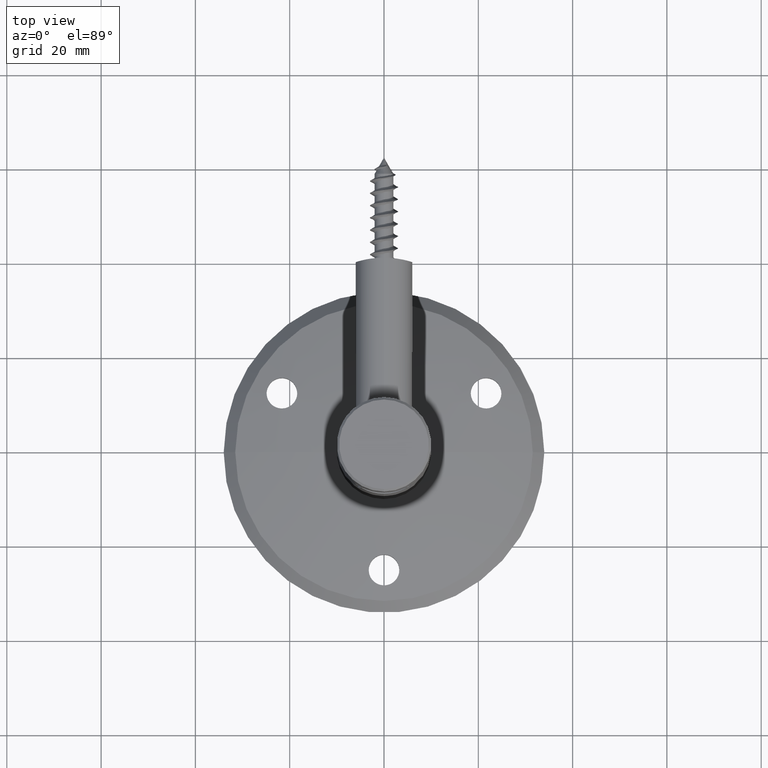
[diagram: clean part render]
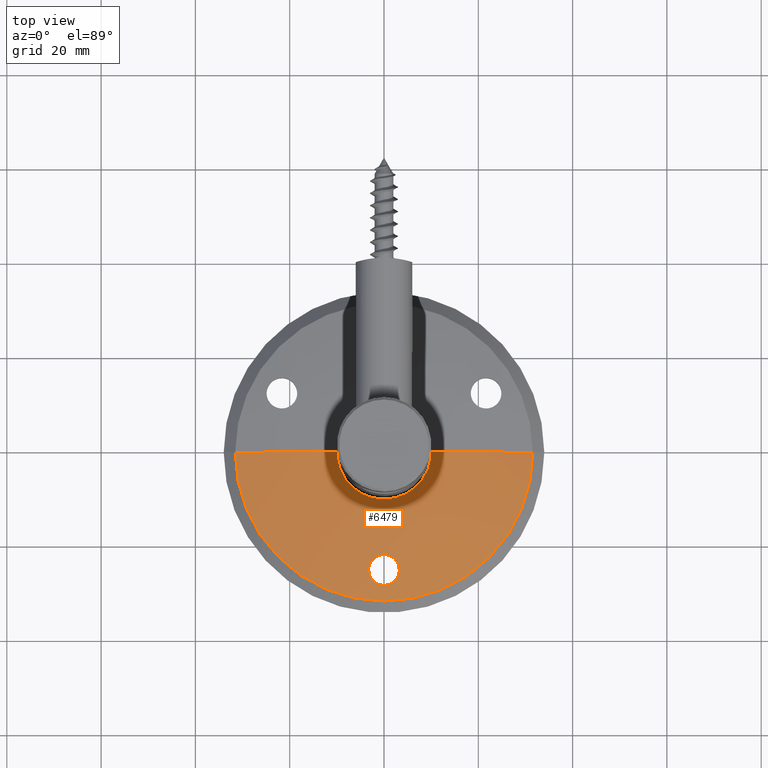
[diagram: same view with one face highlighted and labeled with its STEP entity id]
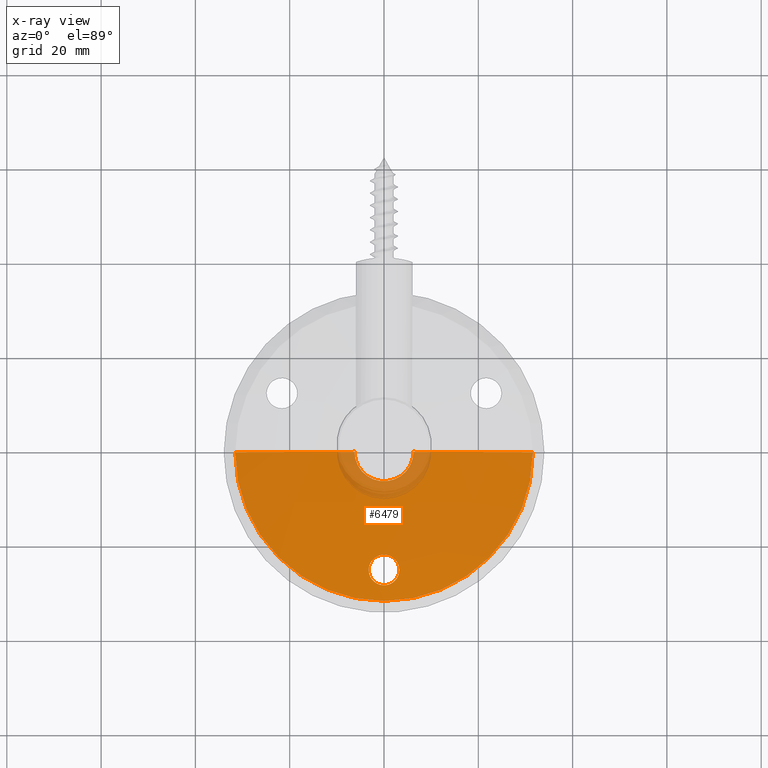
[diagram: x-ray of the same camera — body ghosted, the highlighted face saturated]
A machine part, top view. The second image highlights one B-rep face of the part: STEP entity #6479.
The next image is the same camera in x-ray: the body ghosted, the highlighted face saturated — about 6% of this face is hidden behind the body in this view.
In plain terms, the highlighted spherical surface has radius 137.202 mm.
Its self-contained STEP definition (entity closure, byte-faithful):
#492 = DIRECTION ( 'NONE',  ( -1.000000000000000000, 0.000000000000000000, 0.000000000000000000 ) ) ;
#1478 = DIRECTION ( 'NONE',  ( -1.000000000000000000, 0.000000000000000000, 0.000000000000000000 ) ) ;
#1677 = CARTESIAN_POINT ( 'NONE',  ( 2.592400926990093168, 3.028920962503615311, 23.02850155933839105 ) ) ;
#1778 = AXIS2_PLACEMENT_3D ( 'NONE', #27768, #10141, #5336 ) ;
#1878 = CARTESIAN_POINT ( 'NONE',  ( 1.641276669178852732, 3.184425423041860714, 22.18684626569852369 ) ) ;
#1956 = CARTESIAN_POINT ( 'NONE',  ( -2.159813226997773228, 2.211320021217065612, 27.43772102617782238 ) ) ;
#2065 = CARTESIAN_POINT ( 'NONE',  ( 1.991528001107110812, 2.185390098802928893, 27.57711471203964493 ) ) ;
#2352 = AXIS2_PLACEMENT_3D ( 'NONE', #12020, #14302, #12117 ) ;
#2372 = CARTESIAN_POINT ( 'NONE',  ( -2.156691685735580677, 3.115633097303470933, 22.55929944123282738 ) ) ;
#2547 = CIRCLE ( 'NONE', #24593, 137.2019220182881440 ) ;
#2738 = ORIENTED_EDGE ( 'NONE', *, *, #13621, .T. ) ;
#3693 = CARTESIAN_POINT ( 'NONE',  ( 31.55000000000005045, 1.323225072109828426, 0.000000000000000000 ) ) ;
#3841 = CARTESIAN_POINT ( 'NONE',  ( 1.454156640803115685, 3.203136682624971865, 22.08550439017769307 ) ) ;
#3936 = CARTESIAN_POINT ( 'NONE',  ( 0.2174964460757770335, 3.265038039974091255, 21.75015276172783985 ) ) ;
#3978 = CARTESIAN_POINT ( 'NONE',  ( -3.250000000000234479, 2.663955450819719850, 24.99999999999998579 ) ) ;
#4111 = CARTESIAN_POINT ( 'NONE',  ( 1.451211970268986517, 2.122328351254832324, 27.91601816232683575 ) ) ;
#4127 = CARTESIAN_POINT ( 'NONE',  ( 0.4331654981397827231, 3.261016725665352833, 21.77194385712158109 ) ) ;
#4306 = CARTESIAN_POINT ( 'NONE',  ( -0.8500023731105545988, 2.079854029597326459, 28.14419177345497403 ) ) ;
#4401 = CARTESIAN_POINT ( 'NONE',  ( -0.4296926412405789875, 2.064139729453684069, 28.22859259997591508 ) ) ;
#4524 = CARTESIAN_POINT ( 'NONE',  ( -3.250000000000234479, 2.663955450819719850, 24.99999999999998579 ) ) ;
#4620 = CARTESIAN_POINT ( 'NONE',  ( -3.250000000000053735, 2.703038059138460181, 24.78916358941254572 ) ) ;
#5336 = DIRECTION ( 'NONE',  ( -1.000000000000000000, 0.000000000000000000, -1.224646799147353207E-16 ) ) ;
#5575 = DIRECTION ( 'NONE',  ( 0.000000000000000000, 0.000000000000000000, 1.000000000000000000 ) ) ;
#5577 = EDGE_CURVE ( 'NONE', #20458, #15756, #25541, .T. ) ;
#6295 = CARTESIAN_POINT ( 'NONE',  ( -3.229650991750099287, 2.586094013946226955, 25.41994228504162834 ) ) ;
#6301 = CARTESIAN_POINT ( 'NONE',  ( -9.101148846307532162E-19, 4.857572018106197653, 0.000000000000000000 ) ) ;
#6395 = CARTESIAN_POINT ( 'NONE',  ( 1.638805857162360713, 2.141202045113756558, 27.81460821087681623 ) ) ;
#6479 = ADVANCED_FACE ( 'NONE', ( #26925, #20953 ), #14319, .T. ) ;
#6782 = CARTESIAN_POINT ( 'NONE',  ( 3.250000000000035083, 2.663955450819701198, 25.00000000000000000 ) ) ;
#6796 = CARTESIAN_POINT ( 'NONE',  ( -1.990666235088404790, 3.140982044336217527, 22.42207426070429221 ) ) ;
#6867 = ORIENTED_EDGE ( 'NONE', *, *, #22105, .F. ) ;
#7300 = DIRECTION ( 'NONE',  ( -1.873600393855974325E-19, 1.000000000000000000, -0.000000000000000000 ) ) ;
#7610 = CARTESIAN_POINT ( 'NONE',  ( -31.55000000000002203, 1.323225072109828426, -3.863760651309905284E-15 ) ) ;
#8055 = ORIENTED_EDGE ( 'NONE', *, *, #5577, .F. ) ;
#8373 = CARTESIAN_POINT ( 'NONE',  ( -3.250000000000234479, 2.663955450819719850, 24.99999999999998579 ) ) ;
#8470 = EDGE_LOOP ( 'NONE', ( #8055, #12571, #2738, #6867 ) ) ;
#8657 = CARTESIAN_POINT ( 'NONE',  ( 2.591430693091575144, 2.297765247906433661, 26.97280218484183578 ) ) ;
#8735 = VERTEX_POINT ( 'NONE', #3978 ) ;
#8949 = CARTESIAN_POINT ( 'NONE',  ( -1.995192623916446584, 2.185883768381938097, 27.57446121422133345 ) ) ;
#9549 = CARTESIAN_POINT ( 'NONE',  ( -2.479195016265073111E-19, 1.323225072109827538, 0.000000000000000000 ) ) ;
#9675 = AXIS2_PLACEMENT_3D ( 'NONE', #9549, #7300, #492 ) ;
#10141 = DIRECTION ( 'NONE',  ( 1.224646799147353207E-16, 2.294498725216939218E-35, -1.000000000000000000 ) ) ;
#10525 = CARTESIAN_POINT ( 'NONE',  ( 0.8512705375523558216, 3.245461435386453264, 21.85622563114826633 ) ) ;
#10815 = CARTESIAN_POINT ( 'NONE',  ( 1.993487582803644687, 3.140549368573977596, 22.42441651371716915 ) ) ;
#10998 = CARTESIAN_POINT ( 'NONE',  ( -2.926409320641948142, 2.398743684043612490, 26.42934015102282785 ) ) ;
#11105 = CARTESIAN_POINT ( 'NONE',  ( -2.609005045049652693, 3.031365110220386239, 23.01532227944802145 ) ) ;
#11473 = CARTESIAN_POINT ( 'NONE',  ( 2.926464523787954963, 2.398763488267004806, 26.42923353643488582 ) ) ;
#11563 = CARTESIAN_POINT ( 'NONE',  ( 3.086521474847044200, 2.471155308135585926, 26.03936918174807147 ) ) ;
#11810 = VERTEX_POINT ( 'NONE', #3693 ) ;
#12020 = CARTESIAN_POINT ( 'NONE',  ( 3.232237634562468506E-14, -132.2019220182881725, 0.000000000000000000 ) ) ;
#12117 = DIRECTION ( 'NONE',  ( 1.000000000000000000, 0.000000000000000000, 0.000000000000000000 ) ) ;
#12540 = ORIENTED_EDGE ( 'NONE', *, *, #16083, .F. ) ;
#12571 = ORIENTED_EDGE ( 'NONE', *, *, #23746, .T. ) ;
#12688 = CARTESIAN_POINT ( 'NONE',  ( 3.086761929130924731, 2.856351837252954162, 23.96137736615557756 ) ) ;
#12878 = CARTESIAN_POINT ( 'NONE',  ( 2.459243008238557238, 3.059211127127295260, 22.86463089772988866 ) ) ;
#13055 = CARTESIAN_POINT ( 'NONE',  ( -2.592862076116246861, 2.298095730187556196, 26.97102441712861776 ) ) ;
#13152 = CARTESIAN_POINT ( 'NONE',  ( 6.249999999999849898, 4.857572018106197653, 0.000000000000000000 ) ) ;
#13265 = CARTESIAN_POINT ( 'NONE',  ( -1.447312507633557566, 3.203739160293865407, 22.08224111955242819 ) ) ;
#13621 = EDGE_CURVE ( 'NONE', #11810, #24156, #2547, .T. ) ;
#13944 = CARTESIAN_POINT ( 'NONE',  ( 3.229621388075112343, 2.585911642594279858, 25.42092595600988147 ) ) ;
#14302 = DIRECTION ( 'NONE',  ( 0.000000000000000000, 0.000000000000000000, -1.000000000000000000 ) ) ;
#14319 = SPHERICAL_SURFACE ( 'NONE', #2352, 137.2019220182881440 ) ;
#15165 = CARTESIAN_POINT ( 'NONE',  ( 2.160179166512696813, 3.115037854554449037, 22.56252110879610129 ) ) ;
#15344 = CARTESIAN_POINT ( 'NONE',  ( 0.8478326798048484436, 2.079754976856929449, 28.14472379788352896 ) ) ;
#15452 = CARTESIAN_POINT ( 'NONE',  ( 2.158243679649520796, 2.211040764635037625, 27.43922263792289939 ) ) ;
#15550 = CARTESIAN_POINT ( 'NONE',  ( 1.052449795979152114, 2.091348125655450918, 28.08245479003592493 ) ) ;
#15659 = CARTESIAN_POINT ( 'NONE',  ( -2.844742593811991682, 2.965447188732627914, 23.37185018073568799 ) ) ;
#15747 = CARTESIAN_POINT ( 'NONE',  ( -1.634818135974287490, 3.185146625018466793, 22.18294074625081791 ) ) ;
#15756 = VERTEX_POINT ( 'NONE', #15959 ) ;
#15830 = CARTESIAN_POINT ( 'NONE',  ( 3.147343003203583400, 2.508573895256347885, 25.83777383042232501 ) ) ;
#15846 = CARTESIAN_POINT ( 'NONE',  ( -3.147558069541857684, 2.818913735357526207, 24.16360552628098191 ) ) ;
#15959 = CARTESIAN_POINT ( 'NONE',  ( -6.249999999999849898, 4.857572018106197653, -2.314582450388493275E-15 ) ) ;
#16083 = EDGE_CURVE ( 'NONE', #8735, #26515, #20016, .T. ) ;
#17220 = CARTESIAN_POINT ( 'NONE',  ( 3.250000000000035083, 2.663955450819701198, 25.00000000000000000 ) ) ;
#17305 = CARTESIAN_POINT ( 'NONE',  ( 3.147436845797350280, 2.819081924996216681, 24.16269766413028108 ) ) ;
#17605 = CARTESIAN_POINT ( 'NONE',  ( 1.056978869651363118, 3.233847866114017311, 21.91914754251754260 ) ) ;
#17692 = CARTESIAN_POINT ( 'NONE',  ( -3.148269258271624516, 2.509291786544712188, 25.83390510773121562 ) ) ;
#17790 = CARTESIAN_POINT ( 'NONE',  ( 2.457998915579673760, 2.267271262659036779, 27.13683508701813807 ) ) ;
#17805 = CARTESIAN_POINT ( 'NONE',  ( -3.229070758952826914, 2.742535345734074426, 24.57599581313199977 ) ) ;
#17886 = CARTESIAN_POINT ( 'NONE',  ( -1.638993031047297544, 2.141191289749831750, 27.81466623140985561 ) ) ;
#18330 = AXIS2_PLACEMENT_3D ( 'NONE', #6301, #28353, #1478 ) ;
#19550 = CARTESIAN_POINT ( 'NONE',  ( 3.250000000000035971, 2.702850934307160280, 24.79017305959527206 ) ) ;
#19642 = CARTESIAN_POINT ( 'NONE',  ( -0.4253639397680526457, 3.261215829756945794, 21.77086498772657919 ) ) ;
#20016 = B_SPLINE_CURVE_WITH_KNOTS ( 'NONE', 3,
 ( #8373, #28833, #6295, #17692, #24420, #10998, #26671, #13055, #22077, #1956, #8949, #17886, #20019, #28730, #4306, #4401, #24613, #24224, #26475, #15344, #15550, #4111, #6395, #2065, #15452, #17790, #8657, #24326, #11473, #11563, #15830, #13944, #22769, #6782 ),
 .UNSPECIFIED., .F., .F.,
 ( 4, 2, 2, 2, 2, 2, 2, 2, 2, 2, 2, 2, 2, 2, 2, 2, 4 ),
 ( 0.002459689802056155145, 0.003100188930541229390, 0.003740688059026303636, 0.004381187187511377881, 0.005021686315996452127, 0.005662185444481526372, 0.006302684572966600618, 0.006943183701451674864, 0.007583682829936749109, 0.008224181958421823355, 0.008864681086906897600, 0.009505180215391971846, 0.01014567934387704609, 0.01078617847236212034, 0.01142667760084719458, 0.01206717672933226883, 0.01270767585781734307 ),
 .UNSPECIFIED. ) ;
#20019 = CARTESIAN_POINT ( 'NONE',  ( -1.451525344963221942, 2.122397092000412488, 27.91564871524049707 ) ) ;
#20458 = VERTEX_POINT ( 'NONE', #7610 ) ;
#20953 = FACE_BOUND ( 'NONE', #22840, .T. ) ;
#21346 = CARTESIAN_POINT ( 'NONE',  ( 3.232237634562468506E-14, -132.2019220182881725, 0.000000000000000000 ) ) ;
#22077 = CARTESIAN_POINT ( 'NONE',  ( -2.457675928793718878, 2.267225909551520147, 27.13707884880550836 ) ) ;
#22105 = EDGE_CURVE ( 'NONE', #15756, #24156, #26802, .T. ) ;
#22769 = CARTESIAN_POINT ( 'NONE',  ( 3.250000000000035527, 2.625035690132901056, 25.20995790703664241 ) ) ;
#22840 = EDGE_LOOP ( 'NONE', ( #26248, #12540 ) ) ;
#22873 = B_SPLINE_CURVE_WITH_KNOTS ( 'NONE', 3,
 ( #17220, #19550, #24241, #17305, #12688, #23956, #26493, #1677, #12878, #15165, #10815, #1878, #3841, #17605, #10525, #4127, #3936, #23865, #19642, #28361, #24534, #13265, #15747, #6796, #2372, #11105, #15659, #28951, #15846, #17805, #4620, #4524 ),
 .UNSPECIFIED., .F., .F.,
 ( 4, 2, 2, 2, 2, 2, 2, 2, 2, 2, 2, 2, 2, 2, 2, 4 ),
 ( 0.01270767585781734307, 0.01334777545853620649, 0.01398787505925507164, 0.01462797465997393506, 0.01526807426069279848, 0.01590817386141166190, 0.01654827346213052705, 0.01718837306284939220, 0.01782847266356825389, 0.01846857226428711904, 0.01910867186500598419, 0.01974877146572484587, 0.02038887106644371103, 0.02166907026788143786, 0.02230916986860030995, 0.02294926946931917858 ),
 .UNSPECIFIED. ) ;
#23746 = EDGE_CURVE ( 'NONE', #20458, #11810, #25729, .T. ) ;
#23865 = CARTESIAN_POINT ( 'NONE',  ( -0.2129068674407623152, 3.265094124326113789, 21.74984885859790040 ) ) ;
#23956 = CARTESIAN_POINT ( 'NONE',  ( 2.926938428538476966, 2.928452702753618464, 23.57176065793905195 ) ) ;
#24156 = VERTEX_POINT ( 'NONE', #13152 ) ;
#24224 = CARTESIAN_POINT ( 'NONE',  ( 0.2122350264836269651, 2.060122765309451598, 28.25016472081201613 ) ) ;
#24241 = CARTESIAN_POINT ( 'NONE',  ( 3.229532077380934396, 2.742048256695118980, 24.57862550966717308 ) ) ;
#24326 = CARTESIAN_POINT ( 'NONE',  ( 2.825796034673911716, 2.363444280209488380, 26.61936353794786925 ) ) ;
#24420 = CARTESIAN_POINT ( 'NONE',  ( -3.086452789483304038, 2.471119083082714774, 26.03956431140970906 ) ) ;
#24534 = CARTESIAN_POINT ( 'NONE',  ( -1.053402555858736322, 3.234049169235082566, 21.91805687357903309 ) ) ;
#24593 = AXIS2_PLACEMENT_3D ( 'NONE', #21346, #5575, #28102 ) ;
#24613 = CARTESIAN_POINT ( 'NONE',  ( -0.2172502069060955610, 2.060184468585422035, 28.24983334441580496 ) ) ;
#24765 = CARTESIAN_POINT ( 'NONE',  ( 3.250000000000035083, 2.663955450819701198, 25.00000000000000000 ) ) ;
#25541 = CIRCLE ( 'NONE', #1778, 137.2019220182881440 ) ;
#25729 = CIRCLE ( 'NONE', #9675, 31.55000000000002913 ) ;
#26248 = ORIENTED_EDGE ( 'NONE', *, *, #28627, .F. ) ;
#26475 = CARTESIAN_POINT ( 'NONE',  ( 0.4290341788727823902, 2.064133166246340689, 28.22862783412382726 ) ) ;
#26493 = CARTESIAN_POINT ( 'NONE',  ( 2.826324660045448134, 2.963629307223358822, 23.38159412265979853 ) ) ;
#26515 = VERTEX_POINT ( 'NONE', #24765 ) ;
#26671 = CARTESIAN_POINT ( 'NONE',  ( -2.827938646185013116, 2.364116463174978922, 26.61574565204189824 ) ) ;
#26802 = CIRCLE ( 'NONE', #18330, 6.249999999999849898 ) ;
#26925 = FACE_OUTER_BOUND ( 'NONE', #8470, .T. ) ;
#27768 = CARTESIAN_POINT ( 'NONE',  ( 3.232237634562468506E-14, -132.2019220182881725, 0.000000000000000000 ) ) ;
#28102 = DIRECTION ( 'NONE',  ( 1.000000000000000000, 0.000000000000000000, 0.000000000000000000 ) ) ;
#28353 = DIRECTION ( 'NONE',  ( -1.873600393855974325E-19, 1.000000000000000000, -0.000000000000000000 ) ) ;
#28361 = CARTESIAN_POINT ( 'NONE',  ( -0.8448889053670142202, 3.245786975537923613, 21.85446186697208404 ) ) ;
#28627 = EDGE_CURVE ( 'NONE', #26515, #8735, #22873, .T. ) ;
#28730 = CARTESIAN_POINT ( 'NONE',  ( -1.058284903419117962, 2.091757755129852736, 28.08025426238636513 ) ) ;
#28833 = CARTESIAN_POINT ( 'NONE',  ( -3.250000000000057732, 2.624848448504859544, 25.21096800729527132 ) ) ;
#28951 = CARTESIAN_POINT ( 'NONE',  ( -3.087135548751946512, 2.856226262518926085, 23.96205627879614397 ) ) ;